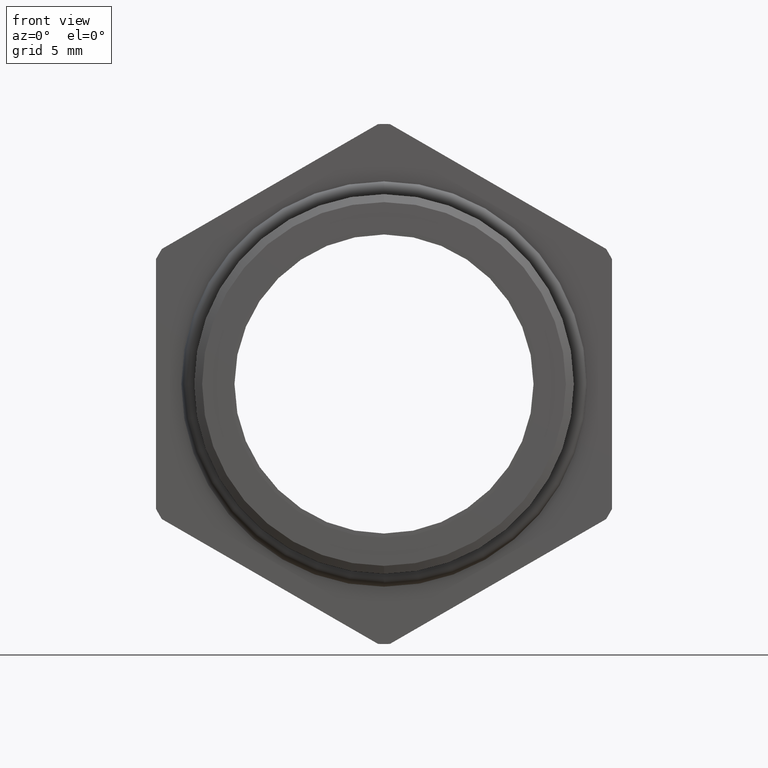
[diagram: clean part render]
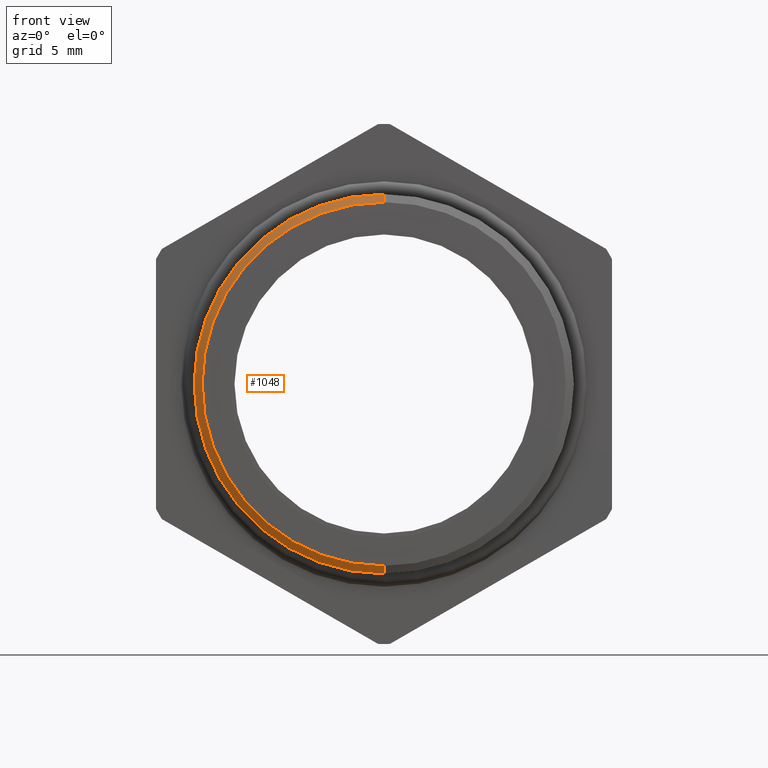
[diagram: same view with one face highlighted and labeled with its STEP entity id]
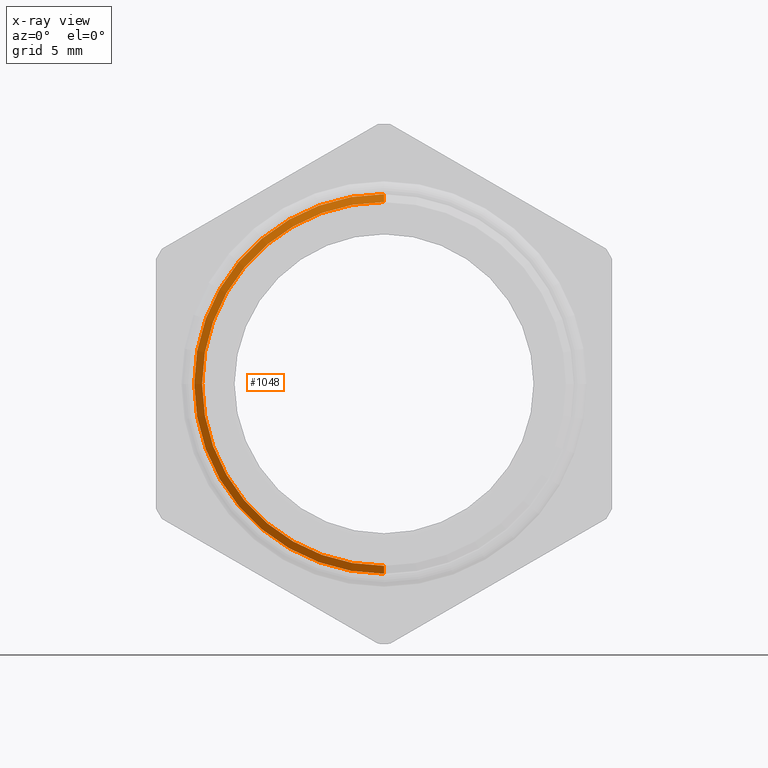
[diagram: x-ray of the same camera — body ghosted, the highlighted face saturated]
A machine part, front view. The second image highlights one B-rep face of the part: STEP entity #1048.
The next image is the same camera in x-ray: the body ghosted, the highlighted face saturated — about 0% of this face is hidden behind the body in this view.
In plain terms, the highlighted conical surface has half-angle 60 deg.
Its self-contained STEP definition (entity closure, byte-faithful):
#973 = ORIENTED_EDGE ( 'NONE', *, *, #1445, .F. ) ;
#1026 = ORIENTED_EDGE ( 'NONE', *, *, #1509, .T. ) ;
#1027 = ORIENTED_EDGE ( 'NONE', *, *, #1451, .T. ) ;
#1028 = ORIENTED_EDGE ( 'NONE', *, *, #1041, .F. ) ;
#1041 = EDGE_CURVE ( 'NONE', #1446, #1449, #4325, .T. ) ;
#1048 = ADVANCED_FACE ( 'NONE', ( #4380 ), #4375, .T. ) ;
#1442 = VERTEX_POINT ( 'NONE', #4897 ) ;
#1443 = VERTEX_POINT ( 'NONE', #4896 ) ;
#1445 = EDGE_CURVE ( 'NONE', #1443, #1446, #4895, .T. ) ;
#1446 = VERTEX_POINT ( 'NONE', #4891 ) ;
#1449 = VERTEX_POINT ( 'NONE', #4885 ) ;
#1451 = EDGE_CURVE ( 'NONE', #1442, #1449, #4884, .T. ) ;
#1509 = EDGE_CURVE ( 'NONE', #1443, #1442, #5030, .T. ) ;
#2379 = EDGE_LOOP ( 'NONE', ( #973, #1026, #1027, #1028 ) ) ;
#4321 = DIRECTION ( 'NONE',  ( 0.0000000000000000000, 0.0000000000000000000, 1.000000000000000000 ) ) ;
#4322 = DIRECTION ( 'NONE',  ( -0.0000000000000000000, 1.000000000000000000, -0.0000000000000000000 ) ) ;
#4323 = CARTESIAN_POINT ( 'NONE',  ( 0.0000000000000000000, 0.003414890582948031300, 0.0000000000000000000 ) ) ;
#4324 = AXIS2_PLACEMENT_3D ( 'NONE', #4323, #4322, #4321 ) ;
#4325 = CIRCLE ( 'NONE', #4324, 0.3287738815610546400 ) ;
#4372 = DIRECTION ( 'NONE',  ( 0.0000000000000000000, 0.0000000000000000000, 1.000000000000000000 ) ) ;
#4373 = DIRECTION ( 'NONE',  ( -0.0000000000000000000, 1.000000000000000000, -0.0000000000000000000 ) ) ;
#4374 = AXIS2_PLACEMENT_3D ( 'NONE', #4379, #4373, #4372 ) ;
#4375 = CONICAL_SURFACE ( 'NONE', #4374, 0.3287738815610546400, 1.047197551196596700 ) ;
#4379 = CARTESIAN_POINT ( 'NONE',  ( 0.0000000000000000000, 0.003414890582948031300, 0.0000000000000000000 ) ) ;
#4380 = FACE_OUTER_BOUND ( 'NONE', #2379, .T. ) ;
#4882 = DIRECTION ( 'NONE',  ( 0.0000000000000000000, 0.5000000000000008900, 0.8660254037844380400 ) ) ;
#4883 = CARTESIAN_POINT ( 'NONE',  ( 0.0000000000000000000, 0.003414890582948031300, 0.3287738815610546400 ) ) ;
#4884 = LINE ( 'NONE', #4883, #4943 ) ;
#4885 = CARTESIAN_POINT ( 'NONE',  ( 4.026318816969966200E-017, 0.003414890582948031300, 0.3287738815610546400 ) ) ;
#4891 = CARTESIAN_POINT ( 'NONE',  ( 0.0000000000000000000, 0.003414890582948031300, -0.3287738815610546400 ) ) ;
#4892 = DIRECTION ( 'NONE',  ( 1.060575238724906300E-016, 0.5000000000000008900, -0.8660254037844380400 ) ) ;
#4893 = VECTOR ( 'NONE', #4892, 39.37007874015748100 ) ;
#4894 = CARTESIAN_POINT ( 'NONE',  ( 4.026318816969965600E-017, 0.003414890582948031300, -0.3287738815610546400 ) ) ;
#4895 = LINE ( 'NONE', #4894, #4893 ) ;
#4896 = CARTESIAN_POINT ( 'NONE',  ( 3.857637417314162700E-017, -0.004537463644112914300, -0.3150000000000000000 ) ) ;
#4897 = CARTESIAN_POINT ( 'NONE',  ( 0.0000000000000000000, -0.004537463644112914300, 0.3150000000000000000 ) ) ;
#4943 = VECTOR ( 'NONE', #4882, 39.37007874015748100 ) ;
#5026 = DIRECTION ( 'NONE',  ( 0.0000000000000000000, 0.0000000000000000000, 1.000000000000000000 ) ) ;
#5027 = DIRECTION ( 'NONE',  ( -0.0000000000000000000, 1.000000000000000000, -0.0000000000000000000 ) ) ;
#5028 = CARTESIAN_POINT ( 'NONE',  ( 0.0000000000000000000, -0.004537463644112914300, 0.0000000000000000000 ) ) ;
#5029 = AXIS2_PLACEMENT_3D ( 'NONE', #5028, #5027, #5026 ) ;
#5030 = CIRCLE ( 'NONE', #5029, 0.3150000000000000000 ) ;